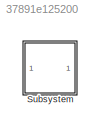
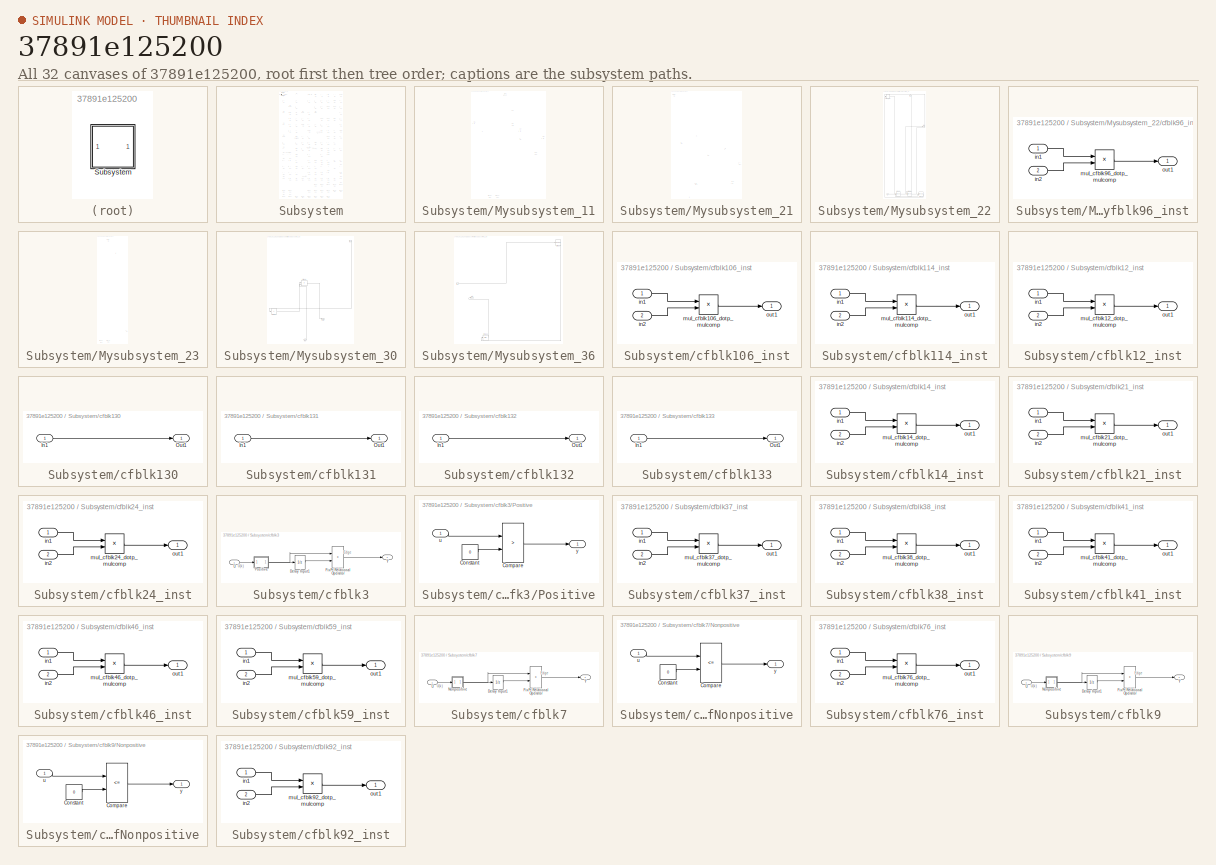
[diagram: thumbnail index - all 32 canvases of the model, root first then tree order]
MODEL slx_37891e125200
KIND model
CONFIG AbsTol = auto
CONFIG EnableMultiTasking = off
CONFIG FixedStep = auto
CONFIG MaxStep = auto
CONFIG MinStep = auto
CONFIG RelTol = 1e-3
CONFIG SampleTimeConstraint = Unconstrained
CONFIG SolverName = VariableStepAuto
CONFIG StartTime = 0.0
CONFIG StopTime = 10.0
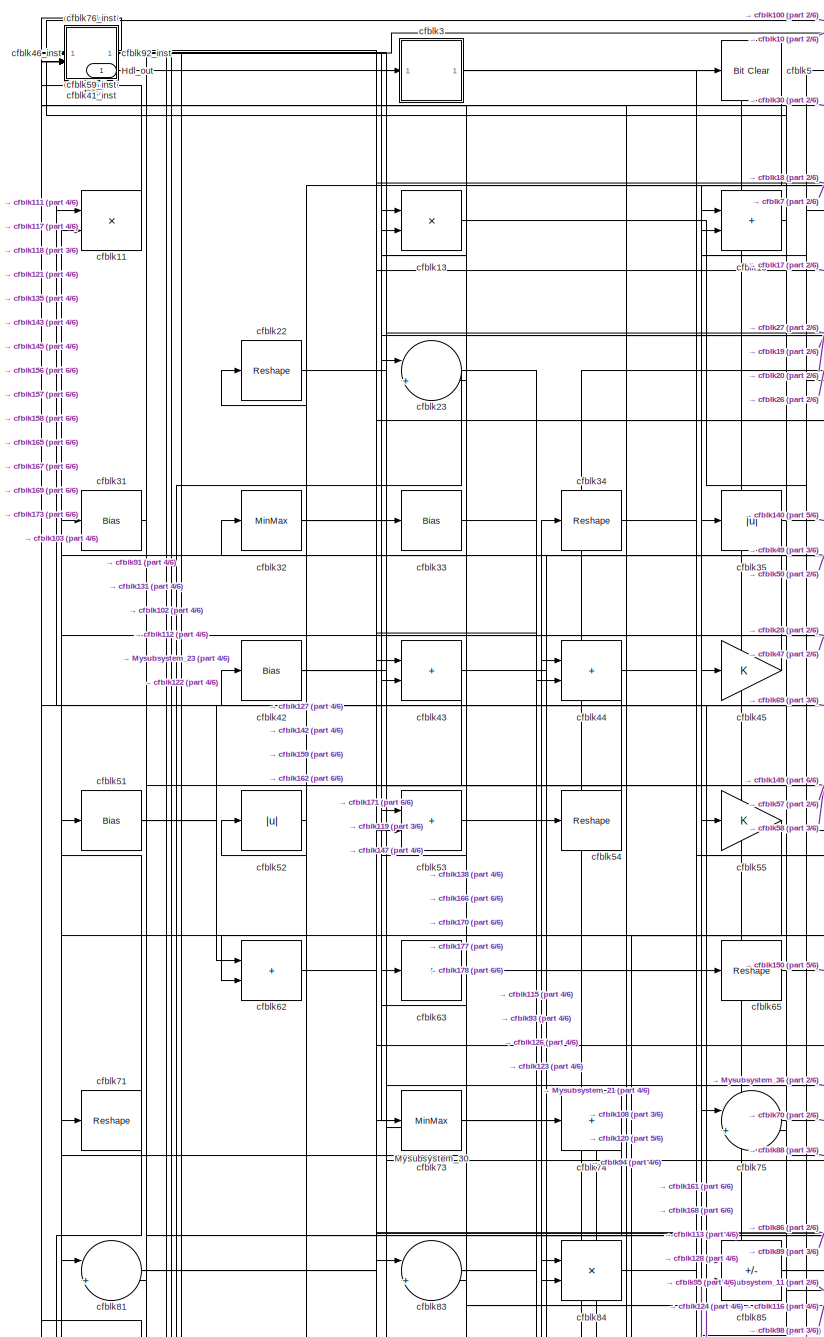
[diagram: Subsystem - part 1/6, top left region]
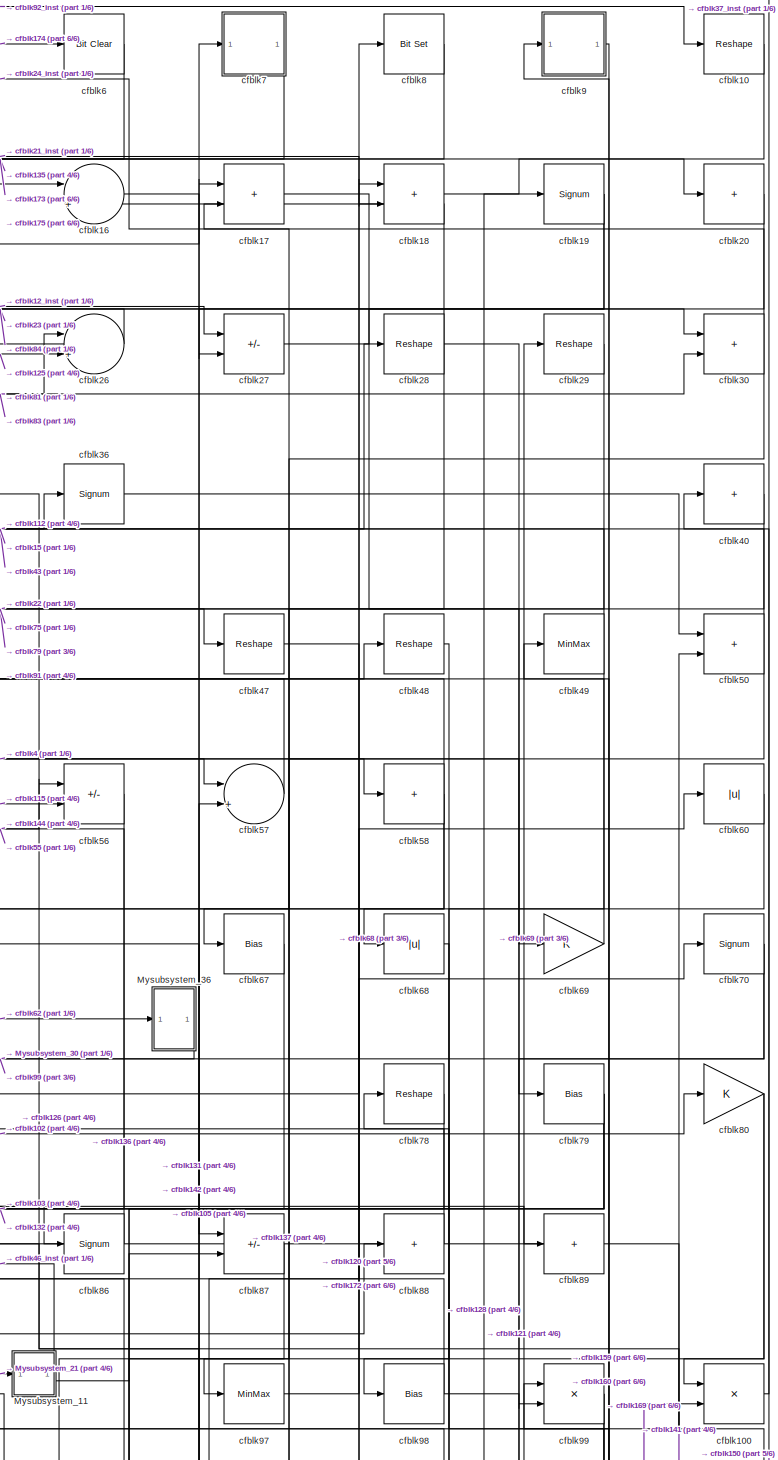
[diagram: Subsystem - part 2/6, top right region]
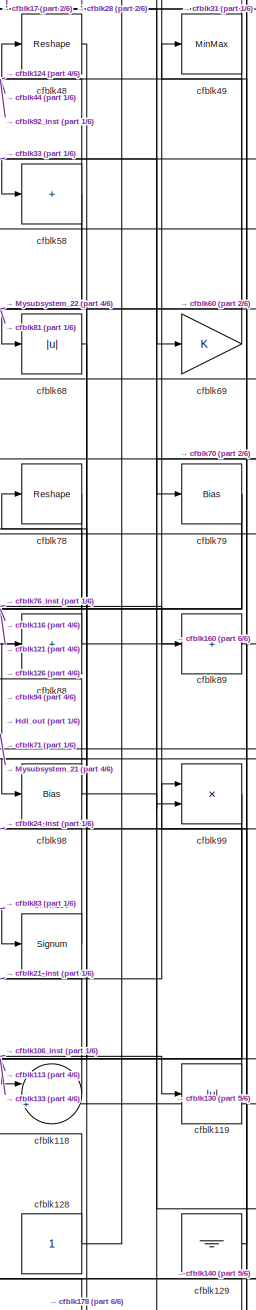
[diagram: Subsystem - part 3/6, middle right region]
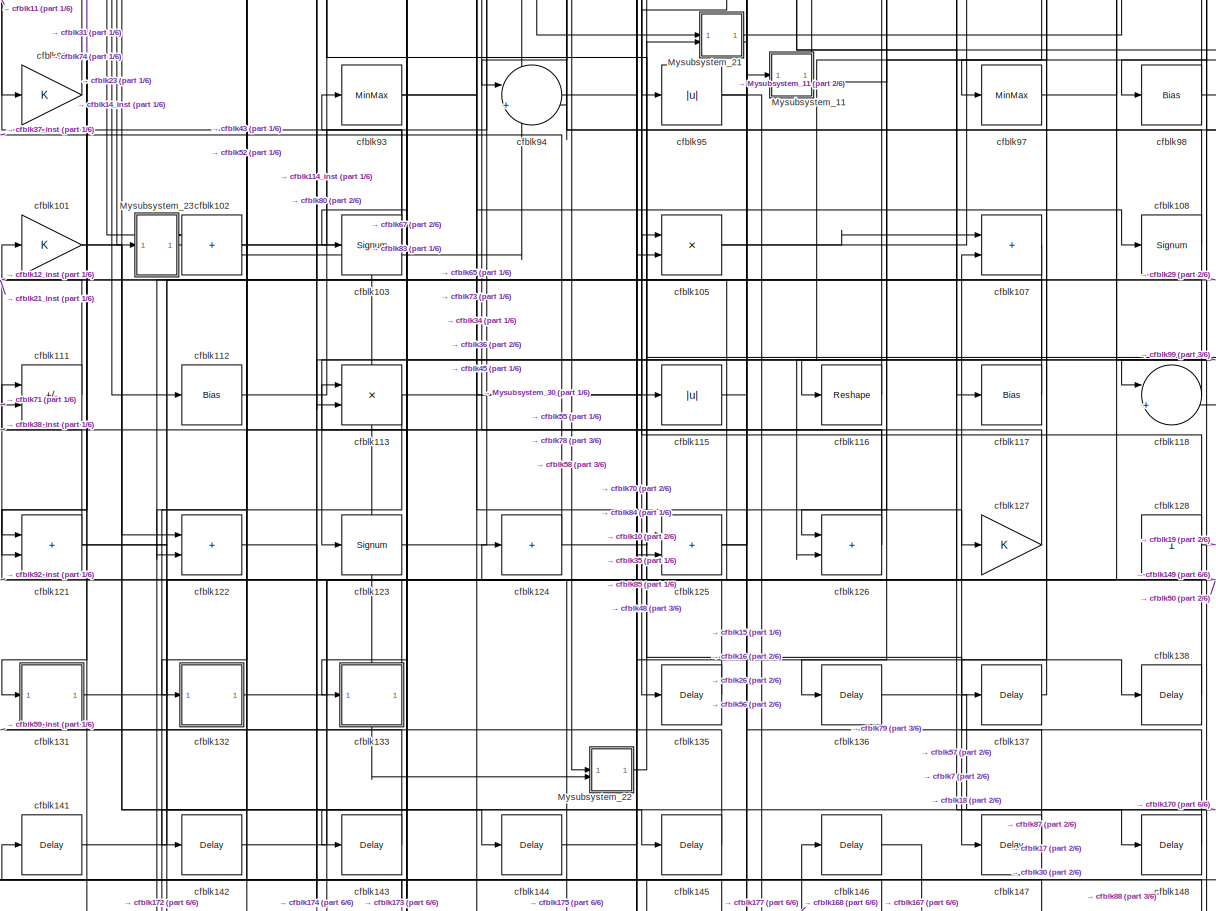
[diagram: Subsystem - part 4/6, full width, middle band]
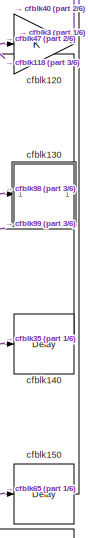
[diagram: Subsystem - part 5/6, bottom right region]
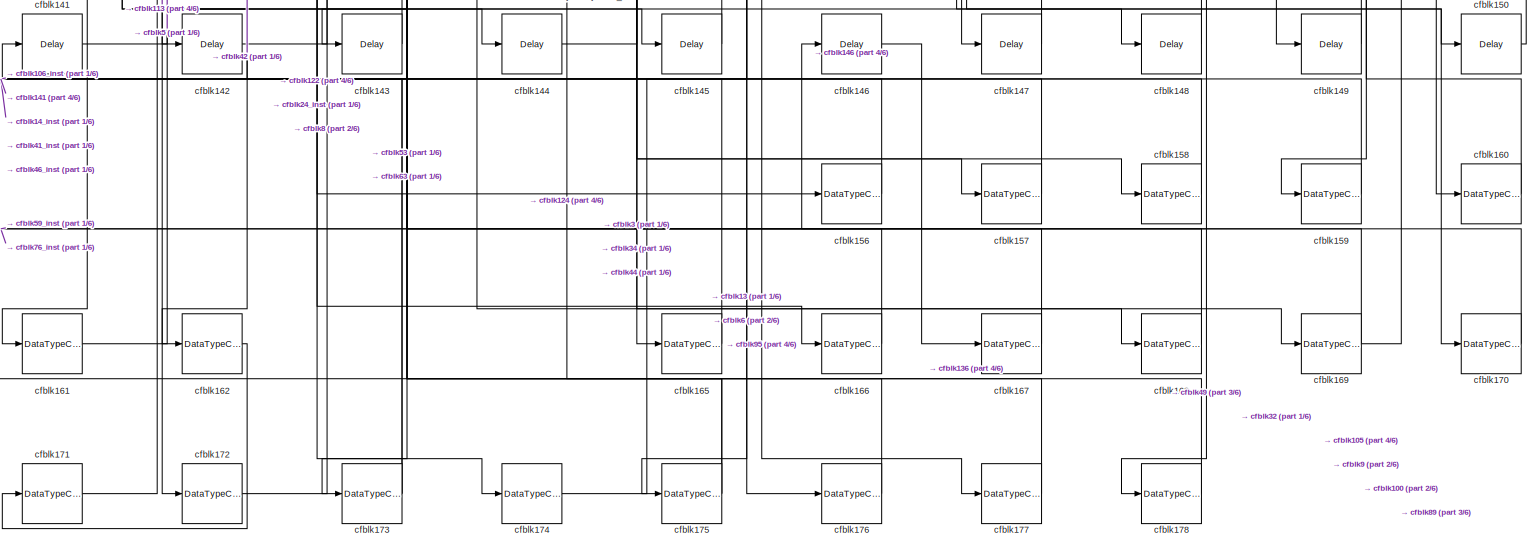
[diagram: Subsystem - part 6/6, full width, bottom band]
BLOCK [SubSystem] Subsystem
BLOCK [Outport] Subsystem/Hdl_out
  OutDataTypeStr = uint8
  SampleTime = 1
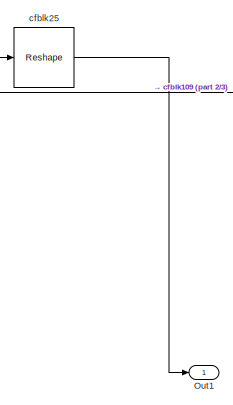
[diagram: Subsystem/Mysubsystem_11 - part 1/3, top center region]
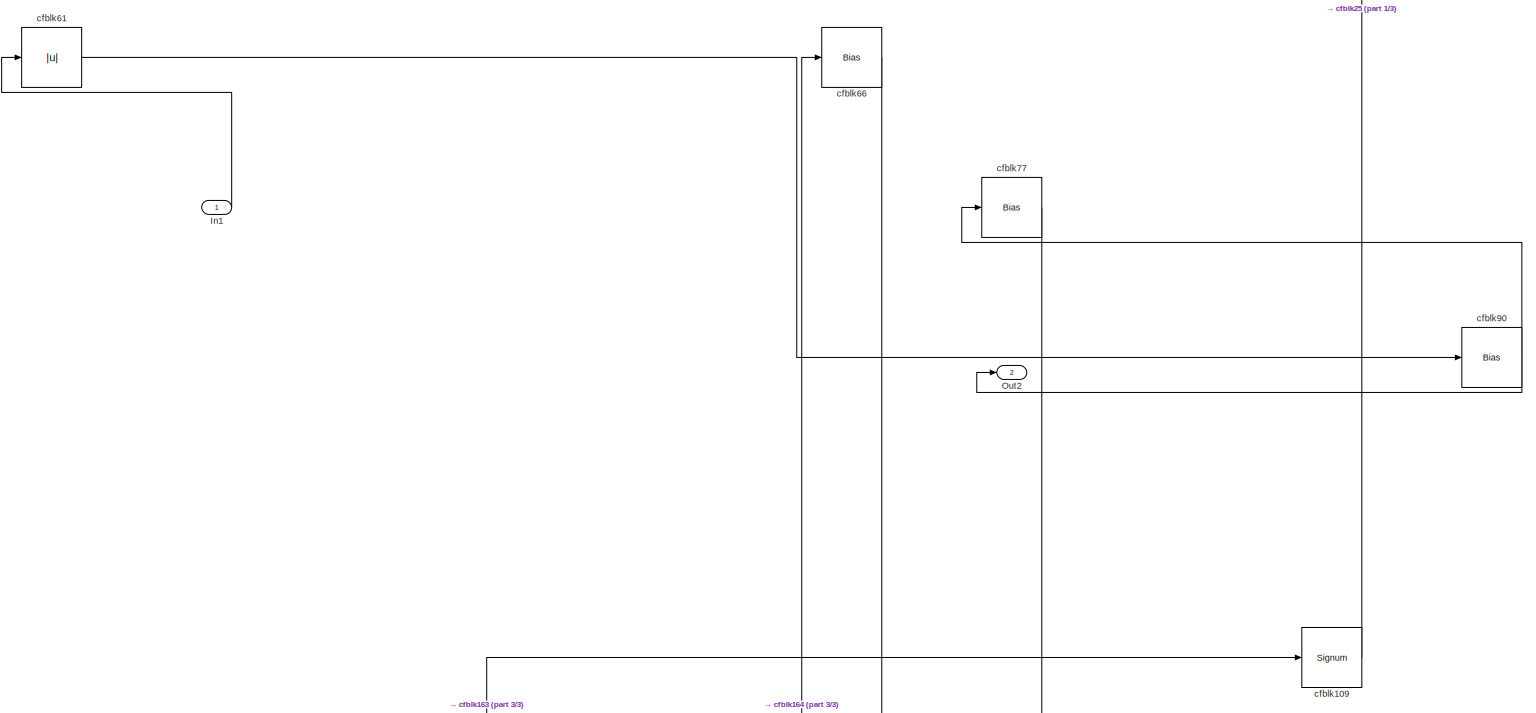
[diagram: Subsystem/Mysubsystem_11 - part 2/3, full width, middle band]
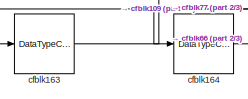
[diagram: Subsystem/Mysubsystem_11 - part 3/3, bottom left region]
BLOCK [SubSystem] Subsystem/Mysubsystem_11
BLOCK [Inport] Subsystem/Mysubsystem_11/In1
  OutDataTypeStr = fixdt(0, 8, 7)
  PortDimensions = 1
  SampleTime = 1
BLOCK [Outport] Subsystem/Mysubsystem_11/Out1
  SampleTime = 1
BLOCK [Outport] Subsystem/Mysubsystem_11/Out2
  Port = 2
  SampleTime = 1
BLOCK [Signum] Subsystem/Mysubsystem_11/cfblk109
BLOCK [DataTypeConversion] Subsystem/Mysubsystem_11/cfblk163
  OutDataTypeStr = uint8
  RndMeth = Floor
  SaturateOnIntegerOverflow = off
BLOCK [DataTypeConversion] Subsystem/Mysubsystem_11/cfblk164
  OutDataTypeStr = uint8
  RndMeth = Floor
  SaturateOnIntegerOverflow = off
BLOCK [Reshape] Subsystem/Mysubsystem_11/cfblk25
BLOCK [Abs] Subsystem/Mysubsystem_11/cfblk61
  SaturateOnIntegerOverflow = off
BLOCK [Bias] Subsystem/Mysubsystem_11/cfblk66
  Bias = 0.0
  SaturateOnIntegerOverflow = off
BLOCK [Bias] Subsystem/Mysubsystem_11/cfblk77
  Bias = 0.0
  SaturateOnIntegerOverflow = off
BLOCK [Bias] Subsystem/Mysubsystem_11/cfblk90
  Bias = 0.0
  SaturateOnIntegerOverflow = off
BLOCK [SubSystem] Subsystem/Mysubsystem_21
BLOCK [Inport] Subsystem/Mysubsystem_21/In1
  OutDataTypeStr = uint8
  PortDimensions = 1
  SampleTime = 1
BLOCK [Inport] Subsystem/Mysubsystem_21/In2
  OutDataTypeStr = uint8
  Port = 2
  PortDimensions = 1
  SampleTime = 1
BLOCK [Outport] Subsystem/Mysubsystem_21/Out1
  SampleTime = 1
BLOCK [Outport] Subsystem/Mysubsystem_21/Out2
  Port = 2
  SampleTime = 1
BLOCK [Reference] Subsystem/Mysubsystem_21/cfblk1  REF=simulink/Logic and Bit
Operations/Detect
Change
  LibrarySourceBlock = hdlsllib/Logic and Bit\nOperations/Detect\nChange
  SourceBlock = simulink/Logic and Bit\nOperations/Detect\nChange
  SourceType = Detect Change
BLOCK [Sum] Subsystem/Mysubsystem_21/cfblk110
  IconShape = rectangular
BLOCK [Delay] Subsystem/Mysubsystem_21/cfblk134
  InputPortMap = u0
  SampleTime = 1
BLOCK [Delay] Subsystem/Mysubsystem_21/cfblk139
  InputPortMap = u0
  SampleTime = 1
BLOCK [Gain] Subsystem/Mysubsystem_21/cfblk72
BLOCK [SubSystem] Subsystem/Mysubsystem_22
BLOCK [Inport] Subsystem/Mysubsystem_22/In1
  OutDataTypeStr = uint8
  PortDimensions = 1
  SampleTime = 1
BLOCK [Inport] Subsystem/Mysubsystem_22/In2
  OutDataTypeStr = uint8
  Port = 2
  PortDimensions = 1
  SampleTime = 1
BLOCK [Outport] Subsystem/Mysubsystem_22/Out1
  SampleTime = 1
BLOCK [DataTypeConversion] Subsystem/Mysubsystem_22/cfblk153
  OutDataTypeStr = uint8
  RndMeth = Floor
  SaturateOnIntegerOverflow = off
BLOCK [DataTypeConversion] Subsystem/Mysubsystem_22/cfblk154
  OutDataTypeStr = uint8
  RndMeth = Floor
  SaturateOnIntegerOverflow = off
BLOCK [DataTypeConversion] Subsystem/Mysubsystem_22/cfblk155
  OutDataTypeStr = uint8
  RndMeth = Floor
  SaturateOnIntegerOverflow = off
BLOCK [SubSystem] Subsystem/Mysubsystem_22/cfblk96_inst
BLOCK [Inport] Subsystem/Mysubsystem_22/cfblk96_inst/in1
  OutDataTypeStr = uint8
  SampleTime = 1
BLOCK [Inport] Subsystem/Mysubsystem_22/cfblk96_inst/in2
  OutDataTypeStr = uint8
  Port = 2
  SampleTime = 1
BLOCK [Product] Subsystem/Mysubsystem_22/cfblk96_inst/mul_cfblk96_dotp_mulcomp
  Inputs = **
  OutDataTypeStr = uint16
  SampleTime = 1
BLOCK [Outport] Subsystem/Mysubsystem_22/cfblk96_inst/out1
  OutDataTypeStr = uint16
  SampleTime = 1
BLOCK [SubSystem] Subsystem/Mysubsystem_23
BLOCK [Inport] Subsystem/Mysubsystem_23/In1
  OutDataTypeStr = uint8
  PortDimensions = 1
  SampleTime = 1
BLOCK [Outport] Subsystem/Mysubsystem_23/Out1
  SampleTime = 1
BLOCK [DataTypeConversion] Subsystem/Mysubsystem_23/cfblk151
  OutDataTypeStr = boolean
  RndMeth = Floor
  SaturateOnIntegerOverflow = off
BLOCK [DataTypeConversion] Subsystem/Mysubsystem_23/cfblk152
  OutDataTypeStr = uint8
  RndMeth = Floor
  SaturateOnIntegerOverflow = off
BLOCK [Reference] Subsystem/Mysubsystem_23/cfblk2  REF=simulink/Logic and Bit
Operations/Bit Clear
  LibrarySourceBlock = hdlsllib/Logic and Bit\nOperations/Bit Clear
  SourceBlock = simulink/Logic and Bit\nOperations/Bit Clear
  SourceType = Bit Clear
BLOCK [SubSystem] Subsystem/Mysubsystem_30
BLOCK [Inport] Subsystem/Mysubsystem_30/In1
  OutDataTypeStr = uint8
  PortDimensions = 1
  SampleTime = 1
BLOCK [Inport] Subsystem/Mysubsystem_30/In2
  OutDataTypeStr = uint8
  Port = 2
  PortDimensions = 1
  SampleTime = 1
BLOCK [Outport] Subsystem/Mysubsystem_30/Out1
  SampleTime = 1
BLOCK [Product] Subsystem/Mysubsystem_30/cfblk64
  Inputs = */
  RndMeth = Zero
  SaturateOnIntegerOverflow = on
BLOCK [Sum] Subsystem/Mysubsystem_30/cfblk82
  IconShape = rectangular
  Inputs = +
BLOCK [SubSystem] Subsystem/Mysubsystem_36
BLOCK [Inport] Subsystem/Mysubsystem_36/In1
  OutDataTypeStr = uint8
  PortDimensions = 1
  SampleTime = 1
BLOCK [Outport] Subsystem/Mysubsystem_36/Out1
  SampleTime = 1
BLOCK [Bias] Subsystem/Mysubsystem_36/cfblk104
  Bias = 0.0
  SaturateOnIntegerOverflow = off
BLOCK [Reshape] Subsystem/Mysubsystem_36/cfblk39
BLOCK [Reshape] Subsystem/cfblk10
BLOCK [Product] Subsystem/cfblk100
  Inputs = */
  OutDataTypeStr = uint8
  RndMeth = Zero
  SaturateOnIntegerOverflow = on
BLOCK [Gain] Subsystem/cfblk101
  OutDataTypeStr = uint8
BLOCK [Sum] Subsystem/cfblk102
  IconShape = rectangular
  OutDataTypeStr = uint8
BLOCK [Signum] Subsystem/cfblk103
BLOCK [Product] Subsystem/cfblk105
  Inputs = */
  OutDataTypeStr = uint8
  RndMeth = Zero
  SaturateOnIntegerOverflow = on
BLOCK [SubSystem] Subsystem/cfblk106_inst
BLOCK [Inport] Subsystem/cfblk106_inst/in1
  OutDataTypeStr = uint8
  SampleTime = 1
BLOCK [Inport] Subsystem/cfblk106_inst/in2
  OutDataTypeStr = uint8
  Port = 2
  SampleTime = 1
BLOCK [Product] Subsystem/cfblk106_inst/mul_cfblk106_dotp_mulcomp
  Inputs = **
  OutDataTypeStr = uint8
  SampleTime = 1
BLOCK [Outport] Subsystem/cfblk106_inst/out1
  OutDataTypeStr = uint8
  SampleTime = 1
BLOCK [Sum] Subsystem/cfblk107
  IconShape = rectangular
  OutDataTypeStr = uint8
BLOCK [Signum] Subsystem/cfblk108
BLOCK [Product] Subsystem/cfblk11
  Inputs = */
  OutDataTypeStr = uint8
  RndMeth = Zero
  SaturateOnIntegerOverflow = on
BLOCK [Sum] Subsystem/cfblk111
  IconShape = rectangular
  Inputs = +-
  OutDataTypeStr = uint8
BLOCK [Bias] Subsystem/cfblk112
  Bias = 0.0
  SaturateOnIntegerOverflow = off
BLOCK [Product] Subsystem/cfblk113
  Inputs = */
  OutDataTypeStr = uint8
  RndMeth = Zero
  SaturateOnIntegerOverflow = on
BLOCK [SubSystem] Subsystem/cfblk114_inst
BLOCK [Inport] Subsystem/cfblk114_inst/in1
  OutDataTypeStr = uint8
  SampleTime = 1
BLOCK [Inport] Subsystem/cfblk114_inst/in2
  OutDataTypeStr = uint8
  Port = 2
  SampleTime = 1
BLOCK [Product] Subsystem/cfblk114_inst/mul_cfblk114_dotp_mulcomp
  Inputs = **
  OutDataTypeStr = uint8
  SampleTime = 1
BLOCK [Outport] Subsystem/cfblk114_inst/out1
  OutDataTypeStr = uint8
  SampleTime = 1
BLOCK [Abs] Subsystem/cfblk115
  OutDataTypeStr = uint8
  SaturateOnIntegerOverflow = off
BLOCK [Reshape] Subsystem/cfblk116
BLOCK [Bias] Subsystem/cfblk117
  Bias = 0.0
  SaturateOnIntegerOverflow = off
BLOCK [Sum] Subsystem/cfblk118
  Inputs = |++
  OutDataTypeStr = uint8
BLOCK [Abs] Subsystem/cfblk119
  OutDataTypeStr = uint8
  SaturateOnIntegerOverflow = off
BLOCK [Gain] Subsystem/cfblk120
  OutDataTypeStr = uint8
BLOCK [Sum] Subsystem/cfblk121
  IconShape = rectangular
  OutDataTypeStr = uint8
BLOCK [Sum] Subsystem/cfblk122
  IconShape = rectangular
  OutDataTypeStr = uint8
BLOCK [Signum] Subsystem/cfblk123
BLOCK [Sum] Subsystem/cfblk124
  IconShape = rectangular
  Inputs = +
  OutDataTypeStr = uint8
BLOCK [Sum] Subsystem/cfblk125
  IconShape = rectangular
  OutDataTypeStr = uint8
BLOCK [Sum] Subsystem/cfblk126
  IconShape = rectangular
  OutDataTypeStr = uint8
BLOCK [Gain] Subsystem/cfblk127
  OutDataTypeStr = uint8
BLOCK [Constant] Subsystem/cfblk128
  OutDataTypeStr = uint8
  SampleTime = -1
BLOCK [Ground] Subsystem/cfblk129
BLOCK [SubSystem] Subsystem/cfblk12_inst
BLOCK [Inport] Subsystem/cfblk12_inst/in1
  OutDataTypeStr = uint8
  SampleTime = 1
BLOCK [Inport] Subsystem/cfblk12_inst/in2
  OutDataTypeStr = uint8
  Port = 2
  SampleTime = 1
BLOCK [Product] Subsystem/cfblk12_inst/mul_cfblk12_dotp_mulcomp
  Inputs = **
  OutDataTypeStr = uint8
  SampleTime = 1
BLOCK [Outport] Subsystem/cfblk12_inst/out1
  OutDataTypeStr = uint8
  SampleTime = 1
BLOCK [Product] Subsystem/cfblk13
  Inputs = */
  OutDataTypeStr = uint8
  RndMeth = Zero
  SaturateOnIntegerOverflow = on
BLOCK [SubSystem] Subsystem/cfblk130
BLOCK [Inport] Subsystem/cfblk130/In1
  OutDataTypeStr = uint8
  PortDimensions = 1
  SampleTime = 1
BLOCK [Outport] Subsystem/cfblk130/Out1
  SampleTime = 1
BLOCK [SubSystem] Subsystem/cfblk131
BLOCK [Inport] Subsystem/cfblk131/In1
  OutDataTypeStr = uint8
  PortDimensions = 1
  SampleTime = 1
BLOCK [Outport] Subsystem/cfblk131/Out1
  SampleTime = 1
BLOCK [SubSystem] Subsystem/cfblk132
BLOCK [Inport] Subsystem/cfblk132/In1
  OutDataTypeStr = uint8
  PortDimensions = 1
  SampleTime = 1
BLOCK [Outport] Subsystem/cfblk132/Out1
  SampleTime = 1
BLOCK [SubSystem] Subsystem/cfblk133
BLOCK [Inport] Subsystem/cfblk133/In1
  OutDataTypeStr = uint8
  PortDimensions = 1
  SampleTime = 1
BLOCK [Outport] Subsystem/cfblk133/Out1
  SampleTime = 1
BLOCK [Delay] Subsystem/cfblk135
  InputPortMap = u0
  SampleTime = 1
BLOCK [Delay] Subsystem/cfblk136
  InputPortMap = u0
  SampleTime = 1
BLOCK [Delay] Subsystem/cfblk137
  InputPortMap = u0
  SampleTime = 1
BLOCK [Delay] Subsystem/cfblk138
  InputPortMap = u0
  SampleTime = 1
BLOCK [Delay] Subsystem/cfblk140
  InputPortMap = u0
  SampleTime = 1
BLOCK [Delay] Subsystem/cfblk141
  InputPortMap = u0
  SampleTime = 1
BLOCK [Delay] Subsystem/cfblk142
  InputPortMap = u0
  SampleTime = 1
BLOCK [Delay] Subsystem/cfblk143
  InputPortMap = u0
  SampleTime = 1
BLOCK [Delay] Subsystem/cfblk144
  InputPortMap = u0
  SampleTime = 1
BLOCK [Delay] Subsystem/cfblk145
  InputPortMap = u0
  SampleTime = 1
BLOCK [Delay] Subsystem/cfblk146
  InputPortMap = u0
  SampleTime = 1
BLOCK [Delay] Subsystem/cfblk147
  InputPortMap = u0
  SampleTime = 1
BLOCK [Delay] Subsystem/cfblk148
  InputPortMap = u0
  SampleTime = 1
BLOCK [Delay] Subsystem/cfblk149
  InputPortMap = u0
  SampleTime = 1
BLOCK [SubSystem] Subsystem/cfblk14_inst
BLOCK [Inport] Subsystem/cfblk14_inst/in1
  OutDataTypeStr = uint8
  SampleTime = 1
BLOCK [Inport] Subsystem/cfblk14_inst/in2
  OutDataTypeStr = uint8
  Port = 2
  SampleTime = 1
BLOCK [Product] Subsystem/cfblk14_inst/mul_cfblk14_dotp_mulcomp
  Inputs = **
  OutDataTypeStr = uint8
  SampleTime = 1
BLOCK [Outport] Subsystem/cfblk14_inst/out1
  OutDataTypeStr = uint8
  SampleTime = 1
BLOCK [Sum] Subsystem/cfblk15
  IconShape = rectangular
  OutDataTypeStr = uint8
BLOCK [Delay] Subsystem/cfblk150
  InputPortMap = u0
  SampleTime = 1
BLOCK [DataTypeConversion] Subsystem/cfblk156
  OutDataTypeStr = uint8
  RndMeth = Floor
  SaturateOnIntegerOverflow = off
BLOCK [DataTypeConversion] Subsystem/cfblk157
  OutDataTypeStr = uint8
  RndMeth = Floor
  SaturateOnIntegerOverflow = off
BLOCK [DataTypeConversion] Subsystem/cfblk158
  OutDataTypeStr = uint8
  RndMeth = Floor
  SaturateOnIntegerOverflow = off
BLOCK [DataTypeConversion] Subsystem/cfblk159
  OutDataTypeStr = uint8
  RndMeth = Floor
  SaturateOnIntegerOverflow = off
BLOCK [Sum] Subsystem/cfblk16
  Inputs = |++
  OutDataTypeStr = uint8
BLOCK [DataTypeConversion] Subsystem/cfblk160
  OutDataTypeStr = uint8
  RndMeth = Floor
  SaturateOnIntegerOverflow = off
BLOCK [DataTypeConversion] Subsystem/cfblk161
  OutDataTypeStr = uint8
  RndMeth = Floor
  SaturateOnIntegerOverflow = off
BLOCK [DataTypeConversion] Subsystem/cfblk162
  OutDataTypeStr = uint8
  RndMeth = Floor
  SaturateOnIntegerOverflow = off
BLOCK [DataTypeConversion] Subsystem/cfblk165
  OutDataTypeStr = uint8
  RndMeth = Floor
  SaturateOnIntegerOverflow = off
BLOCK [DataTypeConversion] Subsystem/cfblk166
  OutDataTypeStr = uint8
  RndMeth = Floor
  SaturateOnIntegerOverflow = off
BLOCK [DataTypeConversion] Subsystem/cfblk167
  OutDataTypeStr = uint8
  RndMeth = Floor
  SaturateOnIntegerOverflow = off
BLOCK [DataTypeConversion] Subsystem/cfblk168
  OutDataTypeStr = uint8
  RndMeth = Floor
  SaturateOnIntegerOverflow = off
BLOCK [DataTypeConversion] Subsystem/cfblk169
  OutDataTypeStr = uint8
  RndMeth = Floor
  SaturateOnIntegerOverflow = off
BLOCK [Sum] Subsystem/cfblk17
  IconShape = rectangular
  OutDataTypeStr = uint8
BLOCK [DataTypeConversion] Subsystem/cfblk170
  OutDataTypeStr = uint8
  RndMeth = Floor
  SaturateOnIntegerOverflow = off
BLOCK [DataTypeConversion] Subsystem/cfblk171
  OutDataTypeStr = uint8
  RndMeth = Floor
  SaturateOnIntegerOverflow = off
BLOCK [DataTypeConversion] Subsystem/cfblk172
  OutDataTypeStr = uint8
  RndMeth = Floor
  SaturateOnIntegerOverflow = off
BLOCK [DataTypeConversion] Subsystem/cfblk173
  OutDataTypeStr = uint8
  RndMeth = Floor
  SaturateOnIntegerOverflow = off
BLOCK [DataTypeConversion] Subsystem/cfblk174
  OutDataTypeStr = uint8
  RndMeth = Floor
  SaturateOnIntegerOverflow = off
BLOCK [DataTypeConversion] Subsystem/cfblk175
  OutDataTypeStr = uint8
  RndMeth = Floor
  SaturateOnIntegerOverflow = off
BLOCK [DataTypeConversion] Subsystem/cfblk176
  OutDataTypeStr = uint8
  RndMeth = Floor
  SaturateOnIntegerOverflow = off
BLOCK [DataTypeConversion] Subsystem/cfblk177
  OutDataTypeStr = uint8
  RndMeth = Floor
  SaturateOnIntegerOverflow = off
BLOCK [DataTypeConversion] Subsystem/cfblk178
  OutDataTypeStr = uint8
  RndMeth = Floor
  SaturateOnIntegerOverflow = off
BLOCK [Sum] Subsystem/cfblk18
  IconShape = rectangular
  OutDataTypeStr = uint8
BLOCK [Signum] Subsystem/cfblk19
BLOCK [Sum] Subsystem/cfblk20
  IconShape = rectangular
  Inputs = +
  OutDataTypeStr = uint8
BLOCK [SubSystem] Subsystem/cfblk21_inst
BLOCK [Inport] Subsystem/cfblk21_inst/in1
  OutDataTypeStr = uint8
  SampleTime = 1
BLOCK [Inport] Subsystem/cfblk21_inst/in2
  OutDataTypeStr = uint8
  Port = 2
  SampleTime = 1
BLOCK [Product] Subsystem/cfblk21_inst/mul_cfblk21_dotp_mulcomp
  Inputs = **
  OutDataTypeStr = uint8
  SampleTime = 1
BLOCK [Outport] Subsystem/cfblk21_inst/out1
  OutDataTypeStr = uint8
  SampleTime = 1
BLOCK [Reshape] Subsystem/cfblk22
BLOCK [Sum] Subsystem/cfblk23
  Inputs = |++
  OutDataTypeStr = uint8
BLOCK [SubSystem] Subsystem/cfblk24_inst
BLOCK [Inport] Subsystem/cfblk24_inst/in1
  OutDataTypeStr = uint8
  SampleTime = 1
BLOCK [Inport] Subsystem/cfblk24_inst/in2
  OutDataTypeStr = uint8
  Port = 2
  SampleTime = 1
BLOCK [Product] Subsystem/cfblk24_inst/mul_cfblk24_dotp_mulcomp
  Inputs = **
  OutDataTypeStr = uint8
  SampleTime = 1
BLOCK [Outport] Subsystem/cfblk24_inst/out1
  OutDataTypeStr = uint8
  SampleTime = 1
BLOCK [Sum] Subsystem/cfblk26
  Inputs = |++
  OutDataTypeStr = uint8
BLOCK [Sum] Subsystem/cfblk27
  IconShape = rectangular
  Inputs = +-
  OutDataTypeStr = uint8
BLOCK [Reshape] Subsystem/cfblk28
BLOCK [Reshape] Subsystem/cfblk29
BLOCK [SubSystem] Subsystem/cfblk3
BLOCK [UnitDelay] Subsystem/cfblk3/Delay Input1
  Description = Store in Global RAM
  DisableCoverage = on
  HasFrameUpgradeWarning = on
  InitialCondition = vinit
  SampleTime = -1
BLOCK [RelationalOperator] Subsystem/cfblk3/FixPt Relational Operator
  InputSameDT = off
  Operator = >
  OutDataTypeStr = fixdt(0, 8)
  ZeroCross = off
BLOCK [SubSystem] Subsystem/cfblk3/Positive
BLOCK [RelationalOperator] Subsystem/cfblk3/Positive/Compare
  Operator = >
  OutDataTypeStr = boolean
  ZeroCross = off
BLOCK [Constant] Subsystem/cfblk3/Positive/Constant
  DisableCoverage = on
  OutDataTypeStr = Inherit: Inherit via back propagation
  PreserveConstantTs = on
  SampleTime = -1
  Value = 0
BLOCK [Inport] Subsystem/cfblk3/Positive/u
  OutDataTypeStr = uint8
  SampleTime = 1
BLOCK [Outport] Subsystem/cfblk3/Positive/y
  SampleTime = 1
BLOCK [Inport] Subsystem/cfblk3/U
  OutDataTypeStr = uint8
  SampleTime = 1
BLOCK [Outport] Subsystem/cfblk3/Y
  SampleTime = 1
BLOCK [Sum] Subsystem/cfblk30
  IconShape = rectangular
  OutDataTypeStr = uint8
BLOCK [Bias] Subsystem/cfblk31
  Bias = 0.0
  SaturateOnIntegerOverflow = off
BLOCK [MinMax] Subsystem/cfblk32
  OutDataTypeStr = uint8
BLOCK [Bias] Subsystem/cfblk33
  Bias = 0.0
  SaturateOnIntegerOverflow = off
BLOCK [Reshape] Subsystem/cfblk34
BLOCK [Abs] Subsystem/cfblk35
  OutDataTypeStr = uint8
  SaturateOnIntegerOverflow = off
BLOCK [Signum] Subsystem/cfblk36
BLOCK [SubSystem] Subsystem/cfblk37_inst
BLOCK [Inport] Subsystem/cfblk37_inst/in1
  OutDataTypeStr = uint8
  SampleTime = 1
BLOCK [Inport] Subsystem/cfblk37_inst/in2
  OutDataTypeStr = uint8
  Port = 2
  SampleTime = 1
BLOCK [Product] Subsystem/cfblk37_inst/mul_cfblk37_dotp_mulcomp
  Inputs = **
  OutDataTypeStr = uint8
  SampleTime = 1
BLOCK [Outport] Subsystem/cfblk37_inst/out1
  OutDataTypeStr = uint8
  SampleTime = 1
BLOCK [SubSystem] Subsystem/cfblk38_inst
BLOCK [Inport] Subsystem/cfblk38_inst/in1
  OutDataTypeStr = uint8
  SampleTime = 1
BLOCK [Inport] Subsystem/cfblk38_inst/in2
  OutDataTypeStr = uint8
  Port = 2
  SampleTime = 1
BLOCK [Product] Subsystem/cfblk38_inst/mul_cfblk38_dotp_mulcomp
  Inputs = **
  OutDataTypeStr = uint8
  SampleTime = 1
BLOCK [Outport] Subsystem/cfblk38_inst/out1
  OutDataTypeStr = uint8
  SampleTime = 1
BLOCK [Constant] Subsystem/cfblk4
  OutDataTypeStr = uint8
  SampleTime = 1
  Value = 0
BLOCK [Sum] Subsystem/cfblk40
  IconShape = rectangular
  Inputs = +
  OutDataTypeStr = uint8
BLOCK [SubSystem] Subsystem/cfblk41_inst
BLOCK [Inport] Subsystem/cfblk41_inst/in1
  OutDataTypeStr = uint8
  SampleTime = 1
BLOCK [Inport] Subsystem/cfblk41_inst/in2
  OutDataTypeStr = uint8
  Port = 2
  SampleTime = 1
BLOCK [Product] Subsystem/cfblk41_inst/mul_cfblk41_dotp_mulcomp
  Inputs = **
  OutDataTypeStr = uint8
  SampleTime = 1
BLOCK [Outport] Subsystem/cfblk41_inst/out1
  OutDataTypeStr = uint8
  SampleTime = 1
BLOCK [Bias] Subsystem/cfblk42
  Bias = 0.0
  SaturateOnIntegerOverflow = off
BLOCK [Sum] Subsystem/cfblk43
  IconShape = rectangular
  OutDataTypeStr = uint8
BLOCK [Sum] Subsystem/cfblk44
  IconShape = rectangular
  OutDataTypeStr = uint8
BLOCK [Gain] Subsystem/cfblk45
  OutDataTypeStr = uint8
BLOCK [SubSystem] Subsystem/cfblk46_inst
BLOCK [Inport] Subsystem/cfblk46_inst/in1
  OutDataTypeStr = uint8
  SampleTime = 1
BLOCK [Inport] Subsystem/cfblk46_inst/in2
  OutDataTypeStr = uint8
  Port = 2
  SampleTime = 1
BLOCK [Product] Subsystem/cfblk46_inst/mul_cfblk46_dotp_mulcomp
  Inputs = **
  OutDataTypeStr = uint8
  SampleTime = 1
BLOCK [Outport] Subsystem/cfblk46_inst/out1
  OutDataTypeStr = uint8
  SampleTime = 1
BLOCK [Reshape] Subsystem/cfblk47
BLOCK [Reshape] Subsystem/cfblk48
BLOCK [MinMax] Subsystem/cfblk49
  OutDataTypeStr = uint8
BLOCK [Reference] Subsystem/cfblk5  REF=simulink/Logic and Bit
Operations/Bit Clear
  LibrarySourceBlock = hdlsllib/Logic and Bit\nOperations/Bit Clear
  SourceBlock = simulink/Logic and Bit\nOperations/Bit Clear
  SourceType = Bit Clear
BLOCK [Sum] Subsystem/cfblk50
  IconShape = rectangular
  OutDataTypeStr = uint8
BLOCK [Bias] Subsystem/cfblk51
  Bias = 0.0
  SaturateOnIntegerOverflow = off
BLOCK [Abs] Subsystem/cfblk52
  OutDataTypeStr = uint8
  SaturateOnIntegerOverflow = off
BLOCK [Sum] Subsystem/cfblk53
  IconShape = rectangular
  OutDataTypeStr = uint8
BLOCK [Reshape] Subsystem/cfblk54
BLOCK [Gain] Subsystem/cfblk55
  OutDataTypeStr = uint8
BLOCK [Sum] Subsystem/cfblk56
  IconShape = rectangular
  Inputs = +-
  OutDataTypeStr = uint8
BLOCK [Sum] Subsystem/cfblk57
  Inputs = |++
  OutDataTypeStr = uint8
BLOCK [Sum] Subsystem/cfblk58
  IconShape = rectangular
  Inputs = +
  OutDataTypeStr = uint8
BLOCK [SubSystem] Subsystem/cfblk59_inst
BLOCK [Inport] Subsystem/cfblk59_inst/in1
  OutDataTypeStr = uint8
  SampleTime = 1
BLOCK [Inport] Subsystem/cfblk59_inst/in2
  OutDataTypeStr = uint8
  Port = 2
  SampleTime = 1
BLOCK [Product] Subsystem/cfblk59_inst/mul_cfblk59_dotp_mulcomp
  Inputs = **
  OutDataTypeStr = uint8
  SampleTime = 1
BLOCK [Outport] Subsystem/cfblk59_inst/out1
  OutDataTypeStr = uint8
  SampleTime = 1
BLOCK [Reference] Subsystem/cfblk6  REF=simulink/Logic and Bit
Operations/Bit Clear
  LibrarySourceBlock = hdlsllib/Logic and Bit\nOperations/Bit Clear
  SourceBlock = simulink/Logic and Bit\nOperations/Bit Clear
  SourceType = Bit Clear
BLOCK [Abs] Subsystem/cfblk60
  OutDataTypeStr = uint8
  SaturateOnIntegerOverflow = off
BLOCK [Sum] Subsystem/cfblk62
  IconShape = rectangular
  OutDataTypeStr = uint8
BLOCK [Sum] Subsystem/cfblk63
  IconShape = rectangular
  Inputs = +
  OutDataTypeStr = uint8
BLOCK [Reshape] Subsystem/cfblk65
BLOCK [Bias] Subsystem/cfblk67
  Bias = 0.0
  SaturateOnIntegerOverflow = off
BLOCK [Abs] Subsystem/cfblk68
  OutDataTypeStr = uint8
  SaturateOnIntegerOverflow = off
BLOCK [Gain] Subsystem/cfblk69
  OutDataTypeStr = uint8
BLOCK [SubSystem] Subsystem/cfblk7
BLOCK [UnitDelay] Subsystem/cfblk7/Delay Input1
  Description = Store in Global RAM
  DisableCoverage = on
  HasFrameUpgradeWarning = on
  InitialCondition = vinit
  SampleTime = -1
BLOCK [RelationalOperator] Subsystem/cfblk7/FixPt Relational Operator
  InputSameDT = off
  Operator = >
  OutDataTypeStr = fixdt(0, 8)
  ZeroCross = off
BLOCK [SubSystem] Subsystem/cfblk7/Nonpositive
BLOCK [RelationalOperator] Subsystem/cfblk7/Nonpositive/Compare
  Operator = <=
  OutDataTypeStr = boolean
  ZeroCross = off
BLOCK [Constant] Subsystem/cfblk7/Nonpositive/Constant
  DisableCoverage = on
  OutDataTypeStr = Inherit: Inherit via back propagation
  PreserveConstantTs = on
  SampleTime = -1
  Value = 0
BLOCK [Inport] Subsystem/cfblk7/Nonpositive/u
  OutDataTypeStr = uint8
  SampleTime = 1
BLOCK [Outport] Subsystem/cfblk7/Nonpositive/y
  SampleTime = 1
BLOCK [Inport] Subsystem/cfblk7/U
  OutDataTypeStr = uint8
  SampleTime = 1
BLOCK [Outport] Subsystem/cfblk7/Y
  SampleTime = 1
BLOCK [Signum] Subsystem/cfblk70
BLOCK [Reshape] Subsystem/cfblk71
BLOCK [MinMax] Subsystem/cfblk73
  OutDataTypeStr = uint8
BLOCK [Sum] Subsystem/cfblk74
  IconShape = rectangular
  Inputs = +
  OutDataTypeStr = uint8
BLOCK [Sum] Subsystem/cfblk75
  Inputs = |++
  OutDataTypeStr = uint8
BLOCK [SubSystem] Subsystem/cfblk76_inst
BLOCK [Inport] Subsystem/cfblk76_inst/in1
  OutDataTypeStr = uint8
  SampleTime = 1
BLOCK [Inport] Subsystem/cfblk76_inst/in2
  OutDataTypeStr = uint8
  Port = 2
  SampleTime = 1
BLOCK [Product] Subsystem/cfblk76_inst/mul_cfblk76_dotp_mulcomp
  Inputs = **
  OutDataTypeStr = uint8
  SampleTime = 1
BLOCK [Outport] Subsystem/cfblk76_inst/out1
  OutDataTypeStr = uint8
  SampleTime = 1
BLOCK [Reshape] Subsystem/cfblk78
BLOCK [Bias] Subsystem/cfblk79
  Bias = 0.0
  SaturateOnIntegerOverflow = off
BLOCK [Reference] Subsystem/cfblk8  REF=simulink/Logic and Bit
Operations/Bit Set
  LibrarySourceBlock = hdlsllib/Logic and Bit\nOperations/Bit Set
  SourceBlock = simulink/Logic and Bit\nOperations/Bit Set
  SourceType = Bit Set
BLOCK [Gain] Subsystem/cfblk80
  OutDataTypeStr = uint8
BLOCK [Sum] Subsystem/cfblk81
  Inputs = |++
  OutDataTypeStr = uint8
BLOCK [Sum] Subsystem/cfblk83
  Inputs = |++
  OutDataTypeStr = uint8
BLOCK [Product] Subsystem/cfblk84
  Inputs = */
  OutDataTypeStr = uint8
  RndMeth = Zero
  SaturateOnIntegerOverflow = on
BLOCK [Sum] Subsystem/cfblk85
  IconShape = rectangular
  Inputs = +-
  OutDataTypeStr = uint8
BLOCK [Signum] Subsystem/cfblk86
BLOCK [Sum] Subsystem/cfblk87
  IconShape = rectangular
  Inputs = +-
  OutDataTypeStr = uint8
BLOCK [Sum] Subsystem/cfblk88
  IconShape = rectangular
  Inputs = +
  OutDataTypeStr = uint8
BLOCK [Sum] Subsystem/cfblk89
  IconShape = rectangular
  Inputs = +
  OutDataTypeStr = uint8
BLOCK [SubSystem] Subsystem/cfblk9
BLOCK [UnitDelay] Subsystem/cfblk9/Delay Input1
  Description = Store in Global RAM
  DisableCoverage = on
  HasFrameUpgradeWarning = on
  InitialCondition = vinit
  SampleTime = -1
BLOCK [RelationalOperator] Subsystem/cfblk9/FixPt Relational Operator
  InputSameDT = off
  Operator = >
  OutDataTypeStr = fixdt(0, 8)
  ZeroCross = off
BLOCK [SubSystem] Subsystem/cfblk9/Nonpositive
BLOCK [RelationalOperator] Subsystem/cfblk9/Nonpositive/Compare
  Operator = <=
  OutDataTypeStr = boolean
  ZeroCross = off
BLOCK [Constant] Subsystem/cfblk9/Nonpositive/Constant
  DisableCoverage = on
  OutDataTypeStr = Inherit: Inherit via back propagation
  PreserveConstantTs = on
  SampleTime = -1
  Value = 0
BLOCK [Inport] Subsystem/cfblk9/Nonpositive/u
  OutDataTypeStr = uint8
  SampleTime = 1
BLOCK [Outport] Subsystem/cfblk9/Nonpositive/y
  SampleTime = 1
BLOCK [Inport] Subsystem/cfblk9/U
  OutDataTypeStr = uint8
  SampleTime = 1
BLOCK [Outport] Subsystem/cfblk9/Y
  SampleTime = 1
BLOCK [Gain] Subsystem/cfblk91
  OutDataTypeStr = uint8
BLOCK [SubSystem] Subsystem/cfblk92_inst
BLOCK [Inport] Subsystem/cfblk92_inst/in1
  OutDataTypeStr = uint8
  SampleTime = 1
BLOCK [Inport] Subsystem/cfblk92_inst/in2
  OutDataTypeStr = uint8
  Port = 2
  SampleTime = 1
BLOCK [Product] Subsystem/cfblk92_inst/mul_cfblk92_dotp_mulcomp
  Inputs = **
  OutDataTypeStr = uint8
  SampleTime = 1
BLOCK [Outport] Subsystem/cfblk92_inst/out1
  OutDataTypeStr = uint8
  SampleTime = 1
BLOCK [MinMax] Subsystem/cfblk93
  OutDataTypeStr = uint8
BLOCK [Sum] Subsystem/cfblk94
  Inputs = |++
  OutDataTypeStr = uint8
BLOCK [Abs] Subsystem/cfblk95
  OutDataTypeStr = uint8
  SaturateOnIntegerOverflow = off
BLOCK [MinMax] Subsystem/cfblk97
  OutDataTypeStr = uint8
BLOCK [Bias] Subsystem/cfblk98
  Bias = 0.0
  SaturateOnIntegerOverflow = off
BLOCK [Product] Subsystem/cfblk99
  Inputs = */
  OutDataTypeStr = uint8
  RndMeth = Zero
  SaturateOnIntegerOverflow = on
ANNOTATION Subsystem/cfblk3: Edge
ANNOTATION Subsystem/cfblk3: U(k)
ANNOTATION Subsystem/cfblk7: Edge
ANNOTATION Subsystem/cfblk7: U(k)
ANNOTATION Subsystem/cfblk9: Edge
ANNOTATION Subsystem/cfblk9: U(k)
LINE Subsystem/Mysubsystem_11/In1:1 -> Subsystem/Mysubsystem_11/cfblk61:1
LINE Subsystem/Mysubsystem_11/cfblk109:1 -> Subsystem/Mysubsystem_11/cfblk25:1
LINE Subsystem/Mysubsystem_11/cfblk163:1 -> Subsystem/Mysubsystem_11/cfblk109:1
LINE Subsystem/Mysubsystem_11/cfblk164:1 -> Subsystem/Mysubsystem_11/cfblk66:1
LINE Subsystem/Mysubsystem_11/cfblk25:1 -> Subsystem/Mysubsystem_11/Out1:1
LINE Subsystem/Mysubsystem_11/cfblk61:1 -> Subsystem/Mysubsystem_11/cfblk90:1
LINE Subsystem/Mysubsystem_11/cfblk66:1 -> Subsystem/Mysubsystem_11/cfblk163:1
LINE Subsystem/Mysubsystem_11/cfblk77:1 -> Subsystem/Mysubsystem_11/cfblk164:1
NET Subsystem/Mysubsystem_11/cfblk90:1 -> Subsystem/Mysubsystem_11/Out2:1, Subsystem/Mysubsystem_11/cfblk77:1
LINE Subsystem/Mysubsystem_11:1 -> Subsystem/cfblk46_inst:2
LINE Subsystem/Mysubsystem_11:2 -> Subsystem/cfblk87:2
LINE Subsystem/Mysubsystem_21/In1:1 -> Subsystem/Mysubsystem_21/cfblk139:1
LINE Subsystem/Mysubsystem_21/In2:1 -> Subsystem/Mysubsystem_21/cfblk134:1
LINE Subsystem/Mysubsystem_21/cfblk110:1 -> Subsystem/Mysubsystem_21/Out1:1
LINE Subsystem/Mysubsystem_21/cfblk134:1 -> Subsystem/Mysubsystem_21/cfblk110:2
LINE Subsystem/Mysubsystem_21/cfblk139:1 -> Subsystem/Mysubsystem_21/cfblk1:1
LINE Subsystem/Mysubsystem_21/cfblk1:1 -> Subsystem/Mysubsystem_21/cfblk72:1
NET Subsystem/Mysubsystem_21/cfblk72:1 -> Subsystem/Mysubsystem_21/Out2:1, Subsystem/Mysubsystem_21/cfblk110:1
LINE Subsystem/Mysubsystem_21:1 -> Subsystem/cfblk88:1
LINE Subsystem/Mysubsystem_21:2 -> Subsystem/Mysubsystem_11:1
LINE Subsystem/Mysubsystem_22/In1:1 -> Subsystem/Mysubsystem_22/cfblk154:1
LINE Subsystem/Mysubsystem_22/In2:1 -> Subsystem/Mysubsystem_22/cfblk155:1
LINE Subsystem/Mysubsystem_22/cfblk153:1 -> Subsystem/Mysubsystem_22/Out1:1
LINE Subsystem/Mysubsystem_22/cfblk154:1 -> Subsystem/Mysubsystem_22/cfblk96_inst:1
LINE Subsystem/Mysubsystem_22/cfblk155:1 -> Subsystem/Mysubsystem_22/cfblk96_inst:2
LINE Subsystem/Mysubsystem_22/cfblk96_inst/in1:1 -> Subsystem/Mysubsystem_22/cfblk96_inst/mul_cfblk96_dotp_mulcomp:1
LINE Subsystem/Mysubsystem_22/cfblk96_inst/in2:1 -> Subsystem/Mysubsystem_22/cfblk96_inst/mul_cfblk96_dotp_mulcomp:2
LINE Subsystem/Mysubsystem_22/cfblk96_inst/mul_cfblk96_dotp_mulcomp:1 -> Subsystem/Mysubsystem_22/cfblk96_inst/out1:1
LINE Subsystem/Mysubsystem_22/cfblk96_inst:1 -> Subsystem/Mysubsystem_22/cfblk153:1
LINE Subsystem/Mysubsystem_22:1 -> Subsystem/Mysubsystem_21:2
LINE Subsystem/Mysubsystem_23/In1:1 -> Subsystem/Mysubsystem_23/cfblk151:1
LINE Subsystem/Mysubsystem_23/cfblk151:1 -> Subsystem/Mysubsystem_23/cfblk2:1
LINE Subsystem/Mysubsystem_23/cfblk152:1 -> Subsystem/Mysubsystem_23/Out1:1
LINE Subsystem/Mysubsystem_23/cfblk2:1 -> Subsystem/Mysubsystem_23/cfblk152:1
LINE Subsystem/Mysubsystem_23:1 -> Subsystem/Mysubsystem_22:2
LINE Subsystem/Mysubsystem_30/In1:1 -> Subsystem/Mysubsystem_30/cfblk82:1
LINE Subsystem/Mysubsystem_30/In2:1 -> Subsystem/Mysubsystem_30/cfblk64:1
LINE Subsystem/Mysubsystem_30/cfblk64:1 -> Subsystem/Mysubsystem_30/Out1:1
LINE Subsystem/Mysubsystem_30/cfblk82:1 -> Subsystem/Mysubsystem_30/cfblk64:2
LINE Subsystem/Mysubsystem_30:1 -> Subsystem/Mysubsystem_21:1
LINE Subsystem/Mysubsystem_36/In1:1 -> Subsystem/Mysubsystem_36/cfblk39:1
LINE Subsystem/Mysubsystem_36/cfblk104:1 -> Subsystem/Mysubsystem_36/Out1:1
LINE Subsystem/Mysubsystem_36/cfblk39:1 -> Subsystem/Mysubsystem_36/cfblk104:1
LINE Subsystem/Mysubsystem_36:1 -> Subsystem/Mysubsystem_30:2
LINE Subsystem/cfblk100:1 -> Subsystem/cfblk37_inst:1
NET Subsystem/cfblk101:1 -> Subsystem/cfblk144:1, Subsystem/cfblk145:1
LINE Subsystem/cfblk102:1 -> Subsystem/cfblk80:1
NET Subsystem/cfblk103:1 -> Subsystem/cfblk11:2, Subsystem/cfblk93:1
NET Subsystem/cfblk105:1 -> Subsystem/cfblk107:1, Subsystem/cfblk18:1
LINE Subsystem/cfblk106_inst/in1:1 -> Subsystem/cfblk106_inst/mul_cfblk106_dotp_mulcomp:1
LINE Subsystem/cfblk106_inst/in2:1 -> Subsystem/cfblk106_inst/mul_cfblk106_dotp_mulcomp:2
LINE Subsystem/cfblk106_inst/mul_cfblk106_dotp_mulcomp:1 -> Subsystem/cfblk106_inst/out1:1
LINE Subsystem/cfblk106_inst:1 -> Subsystem/cfblk119:1
LINE Subsystem/cfblk107:1 -> Subsystem/cfblk123:1
LINE Subsystem/cfblk108:1 -> Subsystem/cfblk24_inst:1
LINE Subsystem/cfblk10:1 -> Subsystem/cfblk135:1
LINE Subsystem/cfblk111:1 -> Subsystem/cfblk12_inst:1
LINE Subsystem/cfblk112:1 -> Subsystem/cfblk36:1
NET Subsystem/cfblk113:1 -> Subsystem/cfblk172:1, Subsystem/cfblk35:1
LINE Subsystem/cfblk114_inst/in1:1 -> Subsystem/cfblk114_inst/mul_cfblk114_dotp_mulcomp:1
LINE Subsystem/cfblk114_inst/in2:1 -> Subsystem/cfblk114_inst/mul_cfblk114_dotp_mulcomp:2
LINE Subsystem/cfblk114_inst/mul_cfblk114_dotp_mulcomp:1 -> Subsystem/cfblk114_inst/out1:1
NET Subsystem/cfblk114_inst:1 -> Subsystem/cfblk106_inst:1, Subsystem/cfblk147:1
LINE Subsystem/cfblk115:1 -> Subsystem/cfblk56:2
LINE Subsystem/cfblk116:1 -> Subsystem/cfblk114_inst:1
LINE Subsystem/cfblk117:1 -> Subsystem/cfblk21_inst:1
LINE Subsystem/cfblk118:1 -> Subsystem/cfblk21_inst:2
LINE Subsystem/cfblk119:1 -> Subsystem/cfblk78:1
LINE Subsystem/cfblk11:1 -> Subsystem/cfblk38_inst:1
LINE Subsystem/cfblk120:1 -> Subsystem/cfblk3:1
NET Subsystem/cfblk121:1 -> Subsystem/cfblk148:1, Subsystem/cfblk29:1, Subsystem/cfblk38_inst:2
LINE Subsystem/cfblk122:1 -> Subsystem/cfblk174:1
LINE Subsystem/cfblk123:1 -> Subsystem/cfblk45:1
NET Subsystem/cfblk124:1 -> Subsystem/cfblk37_inst:2, Subsystem/cfblk48:1
NET Subsystem/cfblk125:1 -> Subsystem/cfblk16:1, Subsystem/cfblk26:2
NET Subsystem/cfblk126:1 -> Subsystem/cfblk101:1, Subsystem/cfblk34:1
LINE Subsystem/cfblk127:1 -> Subsystem/cfblk52:1
NET Subsystem/cfblk128:1 -> Subsystem/cfblk19:1, Subsystem/cfblk85:2
LINE Subsystem/cfblk129:1 -> Subsystem/cfblk49:1
LINE Subsystem/cfblk12_inst/in1:1 -> Subsystem/cfblk12_inst/mul_cfblk12_dotp_mulcomp:1
LINE Subsystem/cfblk12_inst/in2:1 -> Subsystem/cfblk12_inst/mul_cfblk12_dotp_mulcomp:2
LINE Subsystem/cfblk12_inst/mul_cfblk12_dotp_mulcomp:1 -> Subsystem/cfblk12_inst/out1:1
NET Subsystem/cfblk12_inst:1 -> Subsystem/cfblk27:1, Subsystem/cfblk73:1
LINE Subsystem/cfblk130/In1:1 -> Subsystem/cfblk130/Out1:1
LINE Subsystem/cfblk130:1 -> Subsystem/cfblk118:2
LINE Subsystem/cfblk131/In1:1 -> Subsystem/cfblk131/Out1:1
LINE Subsystem/cfblk131:1 -> Subsystem/cfblk7:1
LINE Subsystem/cfblk132/In1:1 -> Subsystem/cfblk132/Out1:1
LINE Subsystem/cfblk132:1 -> Subsystem/cfblk125:1
LINE Subsystem/cfblk133/In1:1 -> Subsystem/cfblk133/Out1:1
LINE Subsystem/cfblk133:1 -> Subsystem/cfblk111:1
LINE Subsystem/cfblk135:1 -> Subsystem/cfblk92_inst:1
LINE Subsystem/cfblk136:1 -> Subsystem/cfblk170:1
LINE Subsystem/cfblk137:1 -> Subsystem/cfblk17:2
LINE Subsystem/cfblk138:1 -> Subsystem/cfblk83:2
LINE Subsystem/cfblk13:1 -> Subsystem/cfblk176:1
LINE Subsystem/cfblk140:1 -> Subsystem/cfblk99:1
LINE Subsystem/cfblk141:1 -> Subsystem/cfblk50:2
LINE Subsystem/cfblk142:1 -> Subsystem/cfblk57:2
LINE Subsystem/cfblk143:1 -> Subsystem/cfblk59_inst:2
LINE Subsystem/cfblk144:1 -> Subsystem/cfblk56:1
LINE Subsystem/cfblk145:1 -> Subsystem/cfblk12_inst:2
LINE Subsystem/cfblk146:1 -> Subsystem/cfblk167:1
LINE Subsystem/cfblk147:1 -> Subsystem/cfblk15:1
LINE Subsystem/cfblk148:1 -> Subsystem/cfblk107:2
LINE Subsystem/cfblk149:1 -> Subsystem/cfblk105:1
LINE Subsystem/cfblk14_inst/in1:1 -> Subsystem/cfblk14_inst/mul_cfblk14_dotp_mulcomp:1
LINE Subsystem/cfblk14_inst/in2:1 -> Subsystem/cfblk14_inst/mul_cfblk14_dotp_mulcomp:2
LINE Subsystem/cfblk14_inst/mul_cfblk14_dotp_mulcomp:1 -> Subsystem/cfblk14_inst/out1:1
NET Subsystem/cfblk14_inst:1 -> Subsystem/cfblk122:1, Subsystem/cfblk85:1
LINE Subsystem/cfblk150:1 -> Subsystem/cfblk40:1
LINE Subsystem/cfblk156:1 -> Subsystem/cfblk14_inst:2
LINE Subsystem/cfblk157:1 -> Subsystem/cfblk41_inst:1
LINE Subsystem/cfblk158:1 -> Subsystem/cfblk41_inst:2
LINE Subsystem/cfblk159:1 -> Subsystem/cfblk42:1
LINE Subsystem/cfblk15:1 -> Subsystem/cfblk95:1
LINE Subsystem/cfblk160:1 -> Subsystem/cfblk9:1
LINE Subsystem/cfblk161:1 -> Subsystem/cfblk5:1
LINE Subsystem/cfblk162:1 -> Subsystem/cfblk171:1
LINE Subsystem/cfblk165:1 -> Subsystem/cfblk46_inst:1
LINE Subsystem/cfblk166:1 -> Subsystem/cfblk63:1
LINE Subsystem/cfblk167:1 -> Subsystem/cfblk76_inst:1
LINE Subsystem/cfblk168:1 -> Subsystem/cfblk146:1
NET Subsystem/cfblk169:1 -> Subsystem/cfblk100:2, Subsystem/cfblk59_inst:1
LINE Subsystem/cfblk16:1 -> Subsystem/cfblk87:1
LINE Subsystem/cfblk170:1 -> Subsystem/cfblk53:1
LINE Subsystem/cfblk171:1 -> Subsystem/cfblk53:2
LINE Subsystem/cfblk172:1 -> Subsystem/cfblk8:1
NET Subsystem/cfblk173:1 -> Subsystem/cfblk106_inst:2, Subsystem/cfblk141:1
LINE Subsystem/cfblk174:1 -> Subsystem/cfblk6:1
NET Subsystem/cfblk175:1 -> Subsystem/cfblk113:1, Subsystem/cfblk124:1
LINE Subsystem/cfblk176:1 -> Subsystem/cfblk14_inst:1
LINE Subsystem/cfblk177:1 -> Subsystem/cfblk13:1
LINE Subsystem/cfblk178:1 -> Subsystem/cfblk13:2
LINE Subsystem/cfblk17:1 -> Subsystem/cfblk69:1
LINE Subsystem/cfblk18:1 -> Subsystem/cfblk20:1
NET Subsystem/cfblk19:1 -> Subsystem/cfblk23:2, Subsystem/cfblk27:2
LINE Subsystem/cfblk20:1 -> Subsystem/cfblk84:2
LINE Subsystem/cfblk21_inst/in1:1 -> Subsystem/cfblk21_inst/mul_cfblk21_dotp_mulcomp:1
LINE Subsystem/cfblk21_inst/in2:1 -> Subsystem/cfblk21_inst/mul_cfblk21_dotp_mulcomp:2
LINE Subsystem/cfblk21_inst/mul_cfblk21_dotp_mulcomp:1 -> Subsystem/cfblk21_inst/out1:1
LINE Subsystem/cfblk21_inst:1 -> Subsystem/cfblk18:2
LINE Subsystem/cfblk22:1 -> Subsystem/cfblk47:1
NET Subsystem/cfblk23:1 -> Subsystem/Mysubsystem_23:1, Subsystem/cfblk54:1
LINE Subsystem/cfblk24_inst/in1:1 -> Subsystem/cfblk24_inst/mul_cfblk24_dotp_mulcomp:1
LINE Subsystem/cfblk24_inst/in2:1 -> Subsystem/cfblk24_inst/mul_cfblk24_dotp_mulcomp:2
LINE Subsystem/cfblk24_inst/mul_cfblk24_dotp_mulcomp:1 -> Subsystem/cfblk24_inst/out1:1
LINE Subsystem/cfblk24_inst:1 -> Subsystem/cfblk166:1
NET Subsystem/cfblk26:1 -> Subsystem/cfblk102:2, Subsystem/cfblk23:1
LINE Subsystem/cfblk27:1 -> Subsystem/cfblk30:1
NET Subsystem/cfblk28:1 -> Subsystem/cfblk16:2, Subsystem/cfblk75:2, Subsystem/cfblk79:1
LINE Subsystem/cfblk29:1 -> Subsystem/cfblk91:1
NET Subsystem/cfblk30:1 -> Subsystem/cfblk137:1, Subsystem/cfblk24_inst:2
LINE Subsystem/cfblk31:1 -> Subsystem/cfblk131:1
NET Subsystem/cfblk32:1 -> Subsystem/cfblk149:1, Subsystem/cfblk74:1
LINE Subsystem/cfblk33:1 -> Subsystem/cfblk58:1
LINE Subsystem/cfblk34:1 -> Subsystem/cfblk168:1
LINE Subsystem/cfblk35:1 -> Subsystem/cfblk140:1
LINE Subsystem/cfblk36:1 -> Subsystem/cfblk50:1
LINE Subsystem/cfblk37_inst/in1:1 -> Subsystem/cfblk37_inst/mul_cfblk37_dotp_mulcomp:1
LINE Subsystem/cfblk37_inst/in2:1 -> Subsystem/cfblk37_inst/mul_cfblk37_dotp_mulcomp:2
LINE Subsystem/cfblk37_inst/mul_cfblk37_dotp_mulcomp:1 -> Subsystem/cfblk37_inst/out1:1
LINE Subsystem/cfblk37_inst:1 -> Subsystem/Mysubsystem_30:1
LINE Subsystem/cfblk38_inst/in1:1 -> Subsystem/cfblk38_inst/mul_cfblk38_dotp_mulcomp:1
LINE Subsystem/cfblk38_inst/in2:1 -> Subsystem/cfblk38_inst/mul_cfblk38_dotp_mulcomp:2
LINE Subsystem/cfblk38_inst/mul_cfblk38_dotp_mulcomp:1 -> Subsystem/cfblk38_inst/out1:1
LINE Subsystem/cfblk38_inst:1 -> Subsystem/cfblk102:1
LINE Subsystem/cfblk3:1 -> Subsystem/cfblk157:1
LINE Subsystem/cfblk40:1 -> Subsystem/cfblk67:1
LINE Subsystem/cfblk41_inst/in1:1 -> Subsystem/cfblk41_inst/mul_cfblk41_dotp_mulcomp:1
LINE Subsystem/cfblk41_inst/in2:1 -> Subsystem/cfblk41_inst/mul_cfblk41_dotp_mulcomp:2
LINE Subsystem/cfblk41_inst/mul_cfblk41_dotp_mulcomp:1 -> Subsystem/cfblk41_inst/out1:1
LINE Subsystem/cfblk41_inst:1 -> Subsystem/cfblk156:1
NET Subsystem/cfblk42:1 -> Subsystem/cfblk75:1, Subsystem/cfblk83:1
NET Subsystem/cfblk43:1 -> Subsystem/cfblk122:2, Subsystem/cfblk28:1
NET Subsystem/cfblk44:1 -> Subsystem/cfblk158:1, Subsystem/cfblk161:1, Subsystem/cfblk62:2
LINE Subsystem/cfblk45:1 -> Subsystem/cfblk32:1
LINE Subsystem/cfblk46_inst/in1:1 -> Subsystem/cfblk46_inst/mul_cfblk46_dotp_mulcomp:1
LINE Subsystem/cfblk46_inst/in2:1 -> Subsystem/cfblk46_inst/mul_cfblk46_dotp_mulcomp:2
LINE Subsystem/cfblk46_inst/mul_cfblk46_dotp_mulcomp:1 -> Subsystem/cfblk46_inst/out1:1
LINE Subsystem/cfblk46_inst:1 -> Subsystem/cfblk86:1
LINE Subsystem/cfblk47:1 -> Subsystem/cfblk120:1
LINE Subsystem/cfblk48:1 -> Subsystem/cfblk118:1
NET Subsystem/cfblk49:1 -> Subsystem/cfblk178:1, Subsystem/cfblk31:1
LINE Subsystem/cfblk4:1 -> Subsystem/cfblk57:1
NET Subsystem/cfblk50:1 -> Subsystem/cfblk15:2, Subsystem/cfblk97:1
NET Subsystem/cfblk51:1 -> Subsystem/cfblk43:2, Subsystem/cfblk62:1
LINE Subsystem/cfblk52:1 -> Subsystem/cfblk142:1
LINE Subsystem/cfblk53:1 -> Subsystem/cfblk169:1
LINE Subsystem/cfblk54:1 -> Subsystem/cfblk11:1
NET Subsystem/cfblk55:1 -> Subsystem/cfblk143:1, Subsystem/cfblk94:2
LINE Subsystem/cfblk56:1 -> Subsystem/cfblk132:1
LINE Subsystem/cfblk57:1 -> Subsystem/cfblk22:1
NET Subsystem/cfblk58:1 -> Subsystem/Mysubsystem_22:1, Subsystem/cfblk44:1, Subsystem/cfblk81:1
LINE Subsystem/cfblk59_inst/in1:1 -> Subsystem/cfblk59_inst/mul_cfblk59_dotp_mulcomp:1
LINE Subsystem/cfblk59_inst/in2:1 -> Subsystem/cfblk59_inst/mul_cfblk59_dotp_mulcomp:2
LINE Subsystem/cfblk59_inst/mul_cfblk59_dotp_mulcomp:1 -> Subsystem/cfblk59_inst/out1:1
LINE Subsystem/cfblk59_inst:1 -> Subsystem/cfblk112:1
LINE Subsystem/cfblk5:1 -> Subsystem/cfblk162:1
LINE Subsystem/cfblk60:1 -> Subsystem/cfblk68:1
LINE Subsystem/cfblk62:1 -> Subsystem/Mysubsystem_36:1
LINE Subsystem/cfblk63:1 -> Subsystem/cfblk165:1
LINE Subsystem/cfblk65:1 -> Subsystem/cfblk150:1
LINE Subsystem/cfblk67:1 -> Subsystem/cfblk103:1
LINE Subsystem/cfblk68:1 -> Subsystem/cfblk98:1
LINE Subsystem/cfblk69:1 -> Subsystem/cfblk92_inst:2
LINE Subsystem/cfblk6:1 -> Subsystem/cfblk175:1
NET Subsystem/cfblk70:1 -> Subsystem/cfblk105:2, Subsystem/cfblk99:2
NET Subsystem/cfblk71:1 -> Subsystem/cfblk111:2, Subsystem/cfblk51:1
LINE Subsystem/cfblk73:1 -> Subsystem/cfblk115:1
LINE Subsystem/cfblk74:1 -> Subsystem/cfblk121:2
LINE Subsystem/cfblk75:1 -> Subsystem/cfblk70:1
LINE Subsystem/cfblk76_inst/in1:1 -> Subsystem/cfblk76_inst/mul_cfblk76_dotp_mulcomp:1
LINE Subsystem/cfblk76_inst/in2:1 -> Subsystem/cfblk76_inst/mul_cfblk76_dotp_mulcomp:2
LINE Subsystem/cfblk76_inst/mul_cfblk76_dotp_mulcomp:1 -> Subsystem/cfblk76_inst/out1:1
NET Subsystem/cfblk76_inst:1 -> Subsystem/cfblk81:2, Subsystem/cfblk89:1
LINE Subsystem/cfblk78:1 -> Subsystem/cfblk94:1
NET Subsystem/cfblk79:1 -> Subsystem/cfblk116:1, Subsystem/cfblk121:1, Subsystem/cfblk126:1
LINE Subsystem/cfblk7:1 -> Subsystem/cfblk84:1
NET Subsystem/cfblk80:1 -> Subsystem/cfblk100:1, Subsystem/cfblk126:2
NET Subsystem/cfblk81:1 -> Subsystem/cfblk17:1, Subsystem/cfblk26:1
NET Subsystem/cfblk83:1 -> Subsystem/cfblk108:1, Subsystem/cfblk30:2, Subsystem/cfblk33:1
LINE Subsystem/cfblk84:1 -> Subsystem/cfblk138:1
LINE Subsystem/cfblk85:1 -> Subsystem/cfblk117:1
LINE Subsystem/cfblk86:1 -> Subsystem/cfblk55:1
LINE Subsystem/cfblk87:1 -> Subsystem/cfblk136:1
LINE Subsystem/cfblk88:1 -> Subsystem/cfblk76_inst:2
NET Subsystem/cfblk89:1 -> Subsystem/Hdl_out:1, Subsystem/cfblk160:1
LINE Subsystem/cfblk8:1 -> Subsystem/cfblk173:1
LINE Subsystem/cfblk91:1 -> Subsystem/cfblk114_inst:2
LINE Subsystem/cfblk92_inst/in1:1 -> Subsystem/cfblk92_inst/mul_cfblk92_dotp_mulcomp:1
LINE Subsystem/cfblk92_inst/in2:1 -> Subsystem/cfblk92_inst/mul_cfblk92_dotp_mulcomp:2
LINE Subsystem/cfblk92_inst/mul_cfblk92_dotp_mulcomp:1 -> Subsystem/cfblk92_inst/out1:1
NET Subsystem/cfblk92_inst:1 -> Subsystem/cfblk10:1, Subsystem/cfblk44:2
NET Subsystem/cfblk93:1 -> Subsystem/cfblk125:2, Subsystem/cfblk65:1
LINE Subsystem/cfblk94:1 -> Subsystem/cfblk127:1
NET Subsystem/cfblk95:1 -> Subsystem/cfblk177:1, Subsystem/cfblk43:1
LINE Subsystem/cfblk97:1 -> Subsystem/cfblk60:1
NET Subsystem/cfblk98:1 -> Subsystem/cfblk130:1, Subsystem/cfblk71:1
NET Subsystem/cfblk99:1 -> Subsystem/cfblk113:2, Subsystem/cfblk133:1
LINE Subsystem/cfblk9:1 -> Subsystem/cfblk159:1
note: NET lines group one-source signal fan-out (src -> all destinations, sorted); 1:1 wires keep LINE
